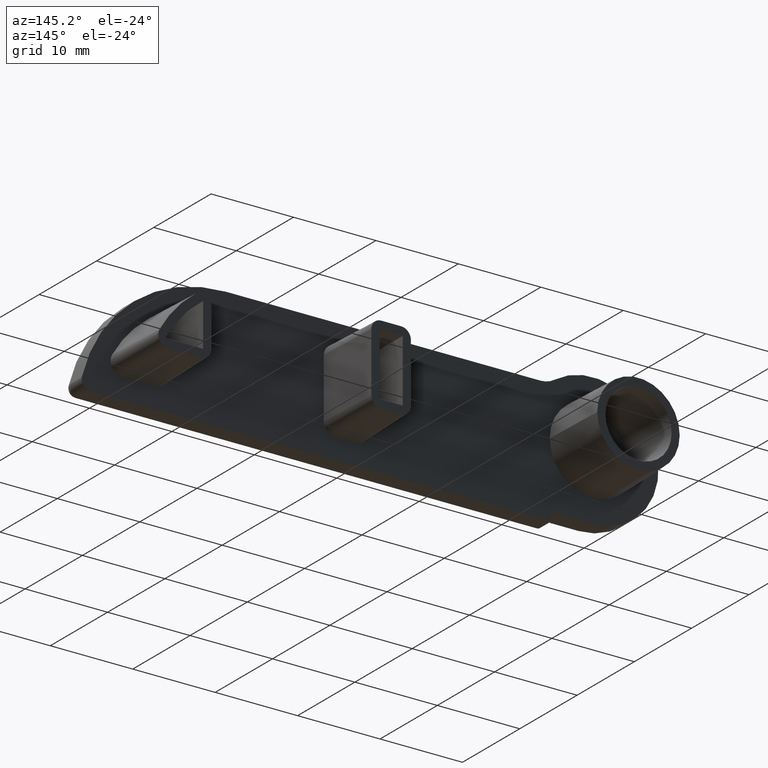
[diagram: clean part render]
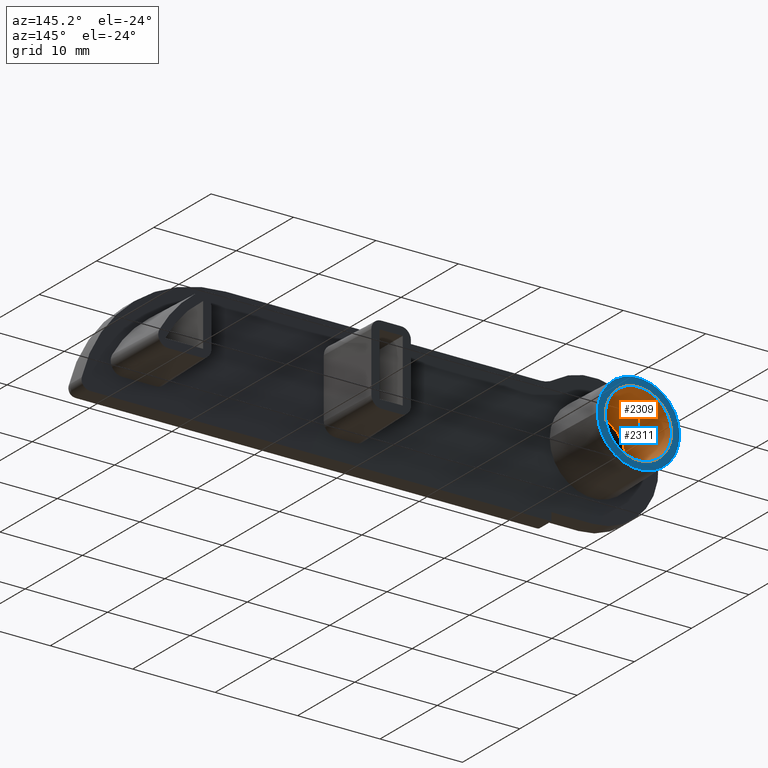
[diagram: same view with the hole feature highlighted: cylindrical wall and planar end face, labeled with their STEP entity ids]
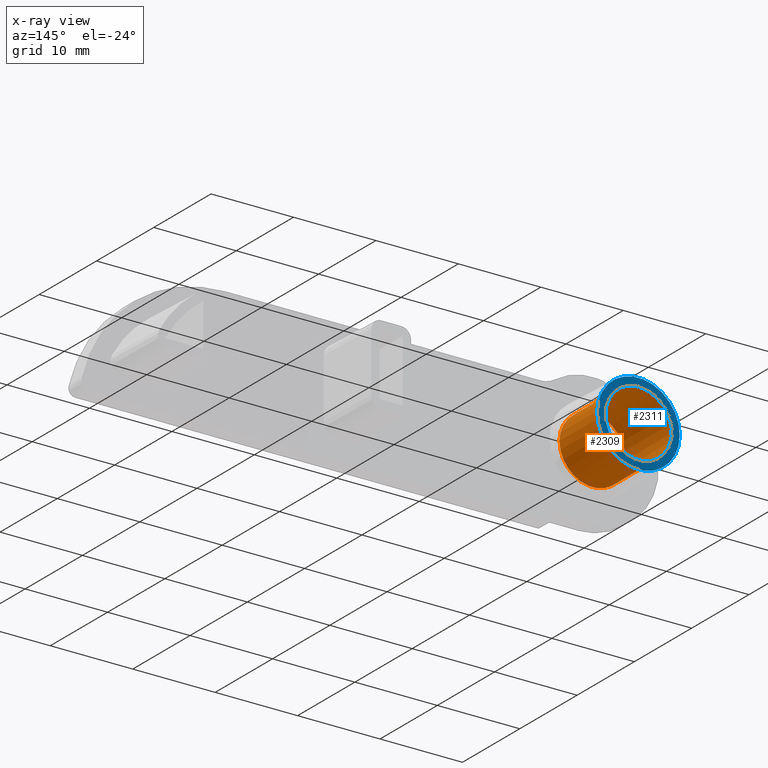
[diagram: x-ray of the same camera — body ghosted, the hole faces saturated]
A machine part, auxiliary view. The highlighted faces form one hole feature of diameter 8.05 mm: the cylindrical wall (entity #2309, orange) and its adjacent planar end face (entity #2311, blue) — they share a circular edge in the B-rep.
The next image is the same camera in x-ray (body ghosted, the hole faces saturated) — the bore reads through the body.
Wall:
#37=CYLINDRICAL_SURFACE('',#2443,4.025);
#56=CIRCLE('',#2444,4.025);
#57=CIRCLE('',#2445,4.025);
#317=FACE_OUTER_BOUND('',#466,.T.);
#466=EDGE_LOOP('',(#1973,#1974,#1975,#1976));
#664=LINE('',#4394,#875);
#875=VECTOR('',#2824,4.025);
#1096=VERTEX_POINT('',#4391);
#1097=VERTEX_POINT('',#4393);
#1399=EDGE_CURVE('',#1096,#1096,#56,.T.);
#1400=EDGE_CURVE('',#1096,#1097,#664,.T.);
#1401=EDGE_CURVE('',#1097,#1097,#57,.T.);
#1973=ORIENTED_EDGE('',*,*,#1399,.F.);
#1974=ORIENTED_EDGE('',*,*,#1400,.T.);
#1975=ORIENTED_EDGE('',*,*,#1401,.F.);
#1976=ORIENTED_EDGE('',*,*,#1400,.F.);
#2309=ADVANCED_FACE('',(#317),#37,.F.);
#2443=AXIS2_PLACEMENT_3D('',#4390,#2820,#2821);
#2444=AXIS2_PLACEMENT_3D('',#4392,#2822,#2823);
#2445=AXIS2_PLACEMENT_3D('',#4395,#2825,#2826);
#2820=DIRECTION('center_axis',(0.,1.,0.));
#2821=DIRECTION('ref_axis',(-1.,0.,0.));
#2822=DIRECTION('center_axis',(0.,1.,0.));
#2823=DIRECTION('ref_axis',(-1.,0.,0.));
#2824=DIRECTION('',(0.,1.,0.));
#2825=DIRECTION('center_axis',(0.,-1.,0.));
#2826=DIRECTION('ref_axis',(-1.,0.,0.));
#4390=CARTESIAN_POINT('Origin',(0.,1.5,0.));
#4391=CARTESIAN_POINT('',(4.025,1.5,-4.9292033665681E-16));
#4392=CARTESIAN_POINT('Origin',(0.,1.5,0.));
#4393=CARTESIAN_POINT('',(4.025,9.5,-4.9292033665681E-16));
#4394=CARTESIAN_POINT('',(4.025,1.5,-4.9292033665681E-16));
#4395=CARTESIAN_POINT('Origin',(0.,9.5,0.));
End face:
#57=CIRCLE('',#2445,4.025);
#58=CIRCLE('',#2447,5.);
#93=FACE_BOUND('',#469,.T.);
#319=FACE_OUTER_BOUND('',#468,.T.);
#468=EDGE_LOOP('',(#1981));
#469=EDGE_LOOP('',(#1982));
#1097=VERTEX_POINT('',#4393);
#1098=VERTEX_POINT('',#4397);
#1401=EDGE_CURVE('',#1097,#1097,#57,.T.);
#1402=EDGE_CURVE('',#1098,#1098,#58,.T.);
#1981=ORIENTED_EDGE('',*,*,#1402,.T.);
#1982=ORIENTED_EDGE('',*,*,#1401,.T.);
#2186=PLANE('',#2449);
#2311=ADVANCED_FACE('',(#319,#93),#2186,.T.);
#2445=AXIS2_PLACEMENT_3D('',#4395,#2825,#2826);
#2447=AXIS2_PLACEMENT_3D('',#4398,#2829,#2830);
#2449=AXIS2_PLACEMENT_3D('',#4402,#2834,#2835);
#2825=DIRECTION('center_axis',(0.,-1.,0.));
#2826=DIRECTION('ref_axis',(-1.,0.,0.));
#2829=DIRECTION('center_axis',(0.,1.,0.));
#2830=DIRECTION('ref_axis',(-1.,0.,0.));
#2834=DIRECTION('center_axis',(0.,1.,0.));
#2835=DIRECTION('ref_axis',(0.,0.,1.));
#4393=CARTESIAN_POINT('',(4.025,9.5,-4.9292033665681E-16));
#4395=CARTESIAN_POINT('Origin',(0.,9.5,0.));
#4397=CARTESIAN_POINT('',(5.,9.5,-6.12323399573677E-16));
#4398=CARTESIAN_POINT('Origin',(0.,9.5,0.));
#4402=CARTESIAN_POINT('Origin',(-2.36064120735332E-16,9.5,0.));